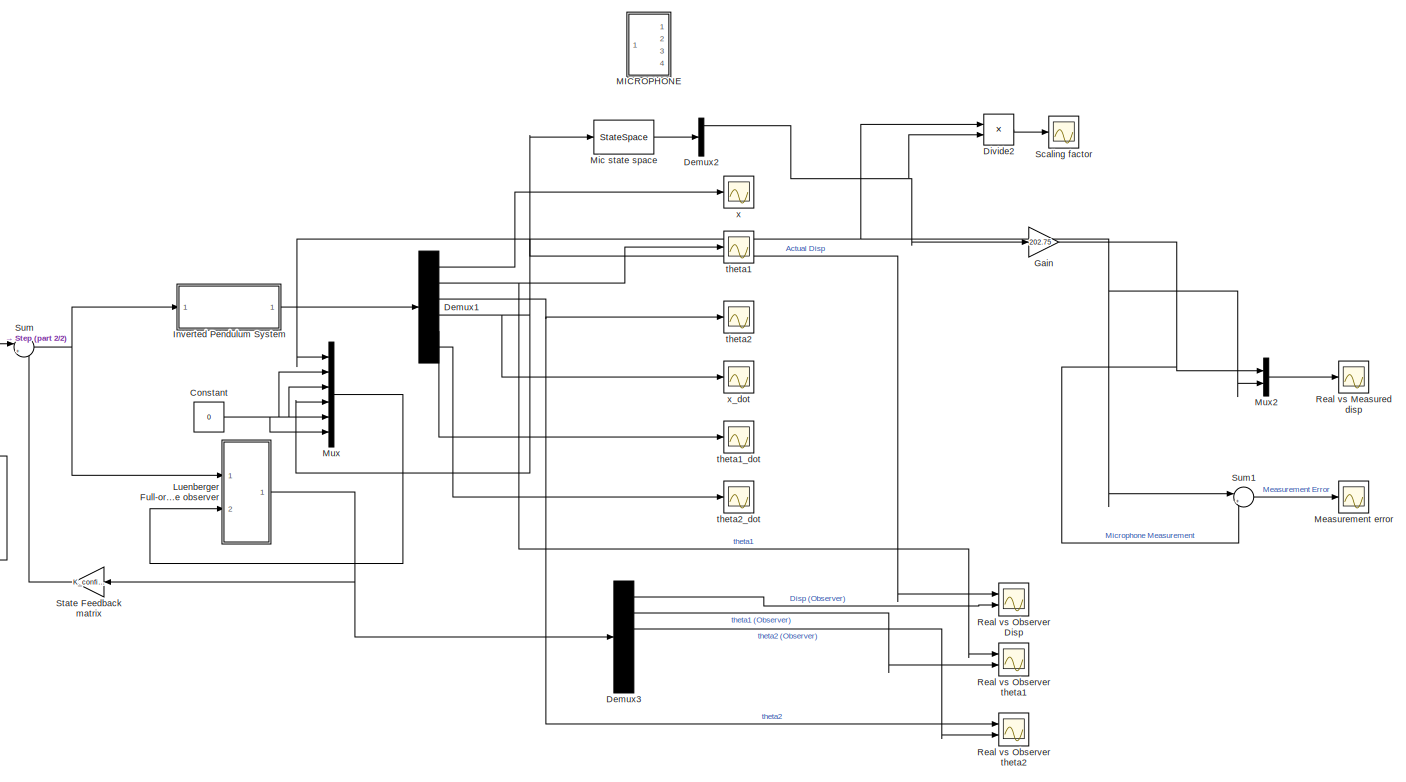
[diagram: root canvas - part 1/2, most of the canvas]
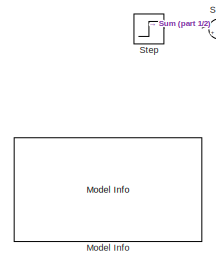
[diagram: root canvas - part 2/2, middle left region]
MODEL slx_f8db99582678
KIND model
CONFIG AbsTol = auto
CONFIG FixedStep = auto
CONFIG InitFcn = double_pend_feedback
CONFIG MaxStep = auto
CONFIG MinStep = auto
CONFIG PreLoadFcn = double_pend_feedback
CONFIG RelTol = 1e-3
CONFIG SampleTimeConstraint = Unconstrained
CONFIG Solver = ode45
CONFIG SolverMode = Auto
CONFIG SolverName = ode45
CONFIG StartFcn = double_pend_feedback
CONFIG StartTime = 0.0
CONFIG StopTime = 3
BLOCK [Constant] Constant
  Value = 0
BLOCK [Demux] Demux1
  DisplayOption = bar
  Outputs = 6
  Ports = [1, 6]
BLOCK [Demux] Demux2
  DisplayOption = bar
  Ports = [1, 4]
BLOCK [Demux] Demux3
  DisplayOption = bar
  Outputs = 6
  Ports = [1, 6]
BLOCK [Product] Divide2
  InputSameDT = off
  Inputs = */
  OutDataTypeStr = Inherit: Inherit via internal rule
  Ports = [2, 1]
  RndMeth = Floor
  SaturateOnIntegerOverflow = off
BLOCK [Gain] Gain
  Gain = 202.75
  OutDataTypeStr = Inherit: Inherit via internal rule
  ParamDataTypeStr = Inherit: Inherit via internal rule
  SaturateOnIntegerOverflow = off
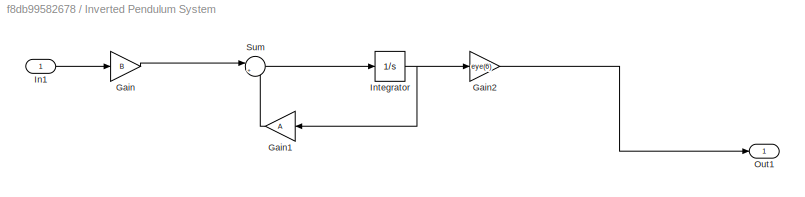
BLOCK [SubSystem] Inverted Pendulum System
  Ports = [1, 1]
  RequestExecContextInheritance = off
BLOCK [Gain] Inverted Pendulum System/Gain
  Gain = B
  Multiplication = Matrix(K*u)
  OutDataTypeStr = Inherit: Inherit via internal rule
  ParamDataTypeStr = Inherit: Inherit via internal rule
  SaturateOnIntegerOverflow = off
BLOCK [Gain] Inverted Pendulum System/Gain1
  Gain = A
  Multiplication = Matrix(K*u)
  OutDataTypeStr = Inherit: Inherit via internal rule
  ParamDataTypeStr = Inherit: Inherit via internal rule
  SaturateOnIntegerOverflow = off
BLOCK [Gain] Inverted Pendulum System/Gain2
  Gain = eye(6)
  Multiplication = Matrix(K*u)
  OutDataTypeStr = Inherit: Inherit via internal rule
  ParamDataTypeStr = Inherit: Inherit via internal rule
  SaturateOnIntegerOverflow = off
BLOCK [Inport] Inverted Pendulum System/In1
  IconDisplay = Port number
BLOCK [Integrator] Inverted Pendulum System/Integrator
  InitialCondition = [0 0 0 0 0 0]
  Ports = [1, 1]
BLOCK [Outport] Inverted Pendulum System/Out1
  IconDisplay = Port number
BLOCK [Sum] Inverted Pendulum System/Sum
  IconShape = round
  InputSameDT = off
  Inputs = |++
  OutDataTypeStr = Inherit: Inherit via internal rule
  Ports = [2, 1]
  SaturateOnIntegerOverflow = off
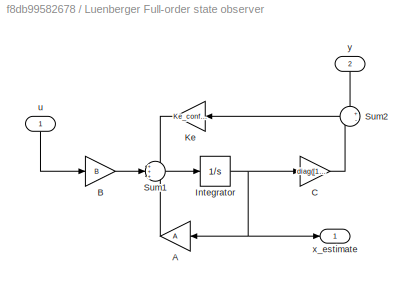
BLOCK [SubSystem] Luenberger Full-order state observer
  Ports = [2, 1]
  RequestExecContextInheritance = off
BLOCK [Gain] Luenberger Full-order state observer/A
  Gain = A
  Multiplication = Matrix(K*u)
  OutDataTypeStr = Inherit: Inherit via internal rule
  ParamDataTypeStr = Inherit: Inherit via internal rule
  SaturateOnIntegerOverflow = off
BLOCK [Gain] Luenberger Full-order state observer/B
  Gain = B
  Multiplication = Matrix(K*u)
  OutDataTypeStr = Inherit: Inherit via internal rule
  ParamDataTypeStr = Inherit: Inherit via internal rule
  SaturateOnIntegerOverflow = off
BLOCK [Gain] Luenberger Full-order state observer/C
  Gain = diag([1 0 0 1 0 0])
  Multiplication = Matrix(K*u)
  OutDataTypeStr = Inherit: Inherit via internal rule
  ParamDataTypeStr = Inherit: Inherit via internal rule
  SaturateOnIntegerOverflow = off
BLOCK [Integrator] Luenberger Full-order state observer/Integrator
  Ports = [1, 1]
BLOCK [Gain] Luenberger Full-order state observer/Ke
  Gain = Ke_confirm
  Multiplication = Matrix(K*u)
  OutDataTypeStr = Inherit: Inherit via internal rule
  ParamDataTypeStr = Inherit: Inherit via internal rule
  SaturateOnIntegerOverflow = off
BLOCK [Sum] Luenberger Full-order state observer/Sum1
  IconShape = round
  InputSameDT = off
  Inputs = +++
  OutDataTypeStr = Inherit: Inherit via internal rule
  Ports = [3, 1]
  SaturateOnIntegerOverflow = off
BLOCK [Sum] Luenberger Full-order state observer/Sum2
  IconShape = round
  InputSameDT = off
  Inputs = +-
  OutDataTypeStr = Inherit: Inherit via internal rule
  Ports = [2, 1]
  SaturateOnIntegerOverflow = off
BLOCK [Inport] Luenberger Full-order state observer/u
  IconDisplay = Port number
BLOCK [Outport] Luenberger Full-order state observer/x_estimate
  IconDisplay = Port number
BLOCK [Inport] Luenberger Full-order state observer/y
  IconDisplay = Port number
  Port = 2
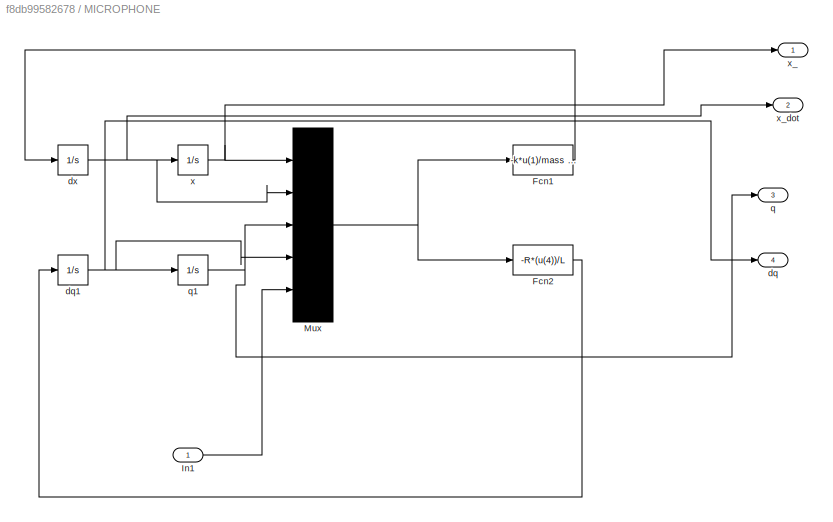
BLOCK [SubSystem] MICROPHONE
  Ports = [1, 4]
  RequestExecContextInheritance = off
BLOCK [Fcn] MICROPHONE/Fcn1
  Expr = -k*u(1)/mass -(damper*u(2))/mass +(u(3))*((sqrt(ep*2*a*k))/ep*a*mass)+ u(5)/mass
BLOCK [Fcn] MICROPHONE/Fcn2
  Expr = -R*(u(4))/L
BLOCK [Inport] MICROPHONE/In1
  IconDisplay = Port number
BLOCK [Mux] MICROPHONE/Mux
  DisplayOption = bar
  Inputs = 5
  Ports = [5, 1]
BLOCK [Outport] MICROPHONE/dq
  IconDisplay = Port number
  Port = 4
BLOCK [Integrator] MICROPHONE/dq1
  Ports = [1, 1]
BLOCK [Integrator] MICROPHONE/dx
  Ports = [1, 1]
BLOCK [Outport] MICROPHONE/q
  IconDisplay = Port number
  Port = 3
BLOCK [Integrator] MICROPHONE/q1
  InitialCondition = 0.01
  LowerSaturationLimit = -3.14
  Ports = [1, 1]
  UpperSaturationLimit = 3.14
BLOCK [Integrator] MICROPHONE/x
  Ports = [1, 1]
BLOCK [Outport] MICROPHONE/x_
  IconDisplay = Port number
BLOCK [Outport] MICROPHONE/x_dot
  IconDisplay = Port number
  Port = 2
BLOCK [Scope] Measurement error
  Floating = off
  LimitDataPoints = off
  NumInputPorts = 1
  Ports = [1]
  SaveName = error
  SaveToWorkspace = on
  ShowLegends = on
BLOCK [StateSpace] Mic state space
  A = A_
  B = B_
  C = eye(4)
  D = [0;0;0;0]
  Ports = [1, 1]
  X0 = 0
BLOCK [Reference] Model Info  REF=simulink/Model-Wide
Utilities/Model Info
  DisplayStringWithTags = State feedback matrix info:\nReplace the feedback block\n to test other controllers\nGain block\nK- pole placement (non-repeated)\nlqr1 - LQR 1 as defined in report\nlqr2- LQR 2 as defined in the report
  Frame = on
  HorizontalTextAlignment = Center
  LeftAlignmentValue = 0.5
  MaskDisplayString = State feedback matrix info:\nReplace the feedback block\n to test other controllers\nGain block\nK- pole placement (non-repeated)\nlqr1 - LQR 1 as defined in report\nlqr2- LQR 2 as defined in the report
  Ports = []
  SourceBlock = simulink/Model-Wide\nUtilities/Model Info
  SourceBlockDiagram = double_luenberger
  SourceType = CMBlock
  TagMaxNumber = 20
BLOCK [Mux] Mux
  DisplayOption = bar
  Inputs = 6
  Ports = [6, 1]
BLOCK [Mux] Mux2
  DisplayOption = bar
  Inputs = 2
  Ports = [2, 1]
BLOCK [Scope] Real vs Measured disp
  Floating = off
  LimitDataPoints = off
  NumInputPorts = 1
  Ports = [1]
  SaveName = mic_v_real
  SaveToWorkspace = on
  ShowLegends = on
BLOCK [Scope] Real vs Observer Disp
  Floating = off
  LimitDataPoints = off
  NumInputPorts = 2
  Ports = [2]
  SaveName = results
  ShowLegends = on
  YMax = 75000~5
  YMin = -425000~-5
BLOCK [Scope] Real vs Observer theta1
  Floating = off
  LegendLocations = 0.92076     0.92337    0.055904    0.024399\n 0.8868      0.4512    0.089864    0.024399
  LimitDataPoints = off
  NumInputPorts = 2
  Ports = [2]
  SaveName = results1
  ShowLegends = on
  YMax = 75000~5
  YMin = -425000~-5
BLOCK [Scope] Real vs Observer theta2
  Floating = off
  LegendLocations = 0.92076     0.92337    0.055904    0.024399\n 0.8868      0.4512    0.089864    0.024399
  LimitDataPoints = off
  NumInputPorts = 2
  Ports = [2]
  SaveName = results2
  ShowLegends = on
  YMax = 75000~5
  YMin = -425000~-5
BLOCK [Scope] Scaling factor
  Floating = off
  LimitDataPoints = off
  NumInputPorts = 1
  Ports = [1]
  SaveName = scaling
  SaveToWorkspace = on
  ShowLegends = on
BLOCK [Gain] State Feedback matrix
  Gain = K_confirm
  Multiplication = Matrix(K*u)
  OutDataTypeStr = Inherit: Inherit via internal rule
  ParamDataTypeStr = Inherit: Inherit via internal rule
  SaturateOnIntegerOverflow = off
BLOCK [Step] Step
  SampleTime = 0
BLOCK [Sum] Sum
  IconShape = round
  InputSameDT = off
  Inputs = |+-
  OutDataTypeStr = Inherit: Inherit via internal rule
  Ports = [2, 1]
  SaturateOnIntegerOverflow = off
BLOCK [Sum] Sum1
  IconShape = round
  InputSameDT = off
  Inputs = |+-
  OutDataTypeStr = Inherit: Inherit via internal rule
  Ports = [2, 1]
  SaturateOnIntegerOverflow = off
BLOCK [Scope] theta1
  Floating = off
  LimitDataPoints = off
  NumInputPorts = 1
  Ports = [1]
  SaveName = theta1
  SaveToWorkspace = on
BLOCK [Scope] theta1_dot
  Floating = off
  LimitDataPoints = off
  NumInputPorts = 1
  Ports = [1]
  SaveName = theta1_dot
  SaveToWorkspace = on
BLOCK [Scope] theta2
  Floating = off
  LimitDataPoints = off
  NumInputPorts = 1
  Ports = [1]
  SaveName = theta2
  SaveToWorkspace = on
BLOCK [Scope] theta2_dot
  Floating = off
  LimitDataPoints = off
  NumInputPorts = 1
  Ports = [1]
  SaveName = theta2_dot
  SaveToWorkspace = on
BLOCK [Scope] x
  Floating = off
  LimitDataPoints = off
  NumInputPorts = 1
  Ports = [1]
  SaveName = x
  SaveToWorkspace = on
BLOCK [Scope] x_dot
  Floating = off
  LimitDataPoints = off
  NumInputPorts = 1
  Ports = [1]
  SaveName = x_dot
  SaveToWorkspace = on
NET Constant:1 -> Mux:2, Mux:3, Mux:5, Mux:6
NET Demux1:1 -> Divide2:1, Mux2:2, Mux:1, Real vs Observer Disp:1, Sum1:1, x:1
NET Demux1:2 -> Real vs Observer theta1:1, theta1:1
NET Demux1:3 -> Real vs Observer theta2:1, theta2:1
NET Demux1:4 -> Mic state space:1, Mux:4, x_dot:1
LINE Demux1:5 -> theta1_dot:1
LINE Demux1:6 -> theta2_dot:1
NET Demux2:1 -> Divide2:2, Gain:1
LINE Demux3:1 -> Real vs Observer Disp:2
LINE Demux3:2 -> Real vs Observer theta1:2
LINE Demux3:3 -> Real vs Observer theta2:2
LINE Divide2:1 -> Scaling factor:1
NET Gain:1 -> Mux2:1, Sum1:2
LINE Inverted Pendulum System/Gain1:1 -> Inverted Pendulum System/Sum:2
LINE Inverted Pendulum System/Gain2:1 -> Inverted Pendulum System/Out1:1
LINE Inverted Pendulum System/Gain:1 -> Inverted Pendulum System/Sum:1
LINE Inverted Pendulum System/In1:1 -> Inverted Pendulum System/Gain:1
NET Inverted Pendulum System/Integrator:1 -> Inverted Pendulum System/Gain1:1, Inverted Pendulum System/Gain2:1
LINE Inverted Pendulum System/Sum:1 -> Inverted Pendulum System/Integrator:1
LINE Inverted Pendulum System:1 -> Demux1:1
LINE Luenberger Full-order state observer/A:1 -> Luenberger Full-order state observer/Sum1:3
LINE Luenberger Full-order state observer/B:1 -> Luenberger Full-order state observer/Sum1:2
LINE Luenberger Full-order state observer/C:1 -> Luenberger Full-order state observer/Sum2:2
NET Luenberger Full-order state observer/Integrator:1 -> Luenberger Full-order state observer/A:1, Luenberger Full-order state observer/C:1, Luenberger Full-order state observer/x_estimate:1
LINE Luenberger Full-order state observer/Ke:1 -> Luenberger Full-order state observer/Sum1:1
LINE Luenberger Full-order state observer/Sum1:1 -> Luenberger Full-order state observer/Integrator:1
LINE Luenberger Full-order state observer/Sum2:1 -> Luenberger Full-order state observer/Ke:1
LINE Luenberger Full-order state observer/u:1 -> Luenberger Full-order state observer/B:1
LINE Luenberger Full-order state observer/y:1 -> Luenberger Full-order state observer/Sum2:1
NET Luenberger Full-order state observer:1 -> Demux3:1, State Feedback matrix:1
LINE MICROPHONE/Fcn1:1 -> MICROPHONE/dx:1
LINE MICROPHONE/Fcn2:1 -> MICROPHONE/dq1:1
LINE MICROPHONE/In1:1 -> MICROPHONE/Mux:5
NET MICROPHONE/Mux:1 -> MICROPHONE/Fcn1:1, MICROPHONE/Fcn2:1
NET MICROPHONE/dq1:1 -> MICROPHONE/Mux:4, MICROPHONE/dq:1, MICROPHONE/q1:1
NET MICROPHONE/dx:1 -> MICROPHONE/Mux:2, MICROPHONE/x:1, MICROPHONE/x_dot:1
NET MICROPHONE/q1:1 -> MICROPHONE/Mux:3, MICROPHONE/q:1
NET MICROPHONE/x:1 -> MICROPHONE/Mux:1, MICROPHONE/x_:1
LINE Mic state space:1 -> Demux2:1
LINE Mux2:1 -> Real vs Measured disp:1
LINE Mux:1 -> Luenberger Full-order state observer:2
LINE State Feedback matrix:1 -> Sum:2
LINE Step:1 -> Sum:1
LINE Sum1:1 -> Measurement error:1
NET Sum:1 -> Inverted Pendulum System:1, Luenberger Full-order state observer:1
note: NET lines group one-source signal fan-out (src -> all destinations, sorted); 1:1 wires keep LINE
